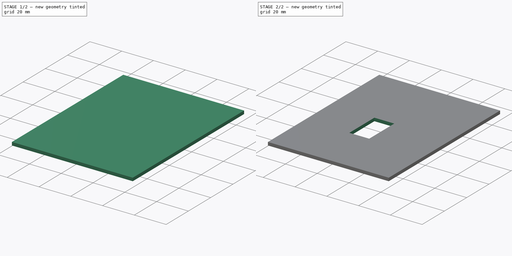
[diagram: build sequence overview — one tinted view per stage of 2, left to right]
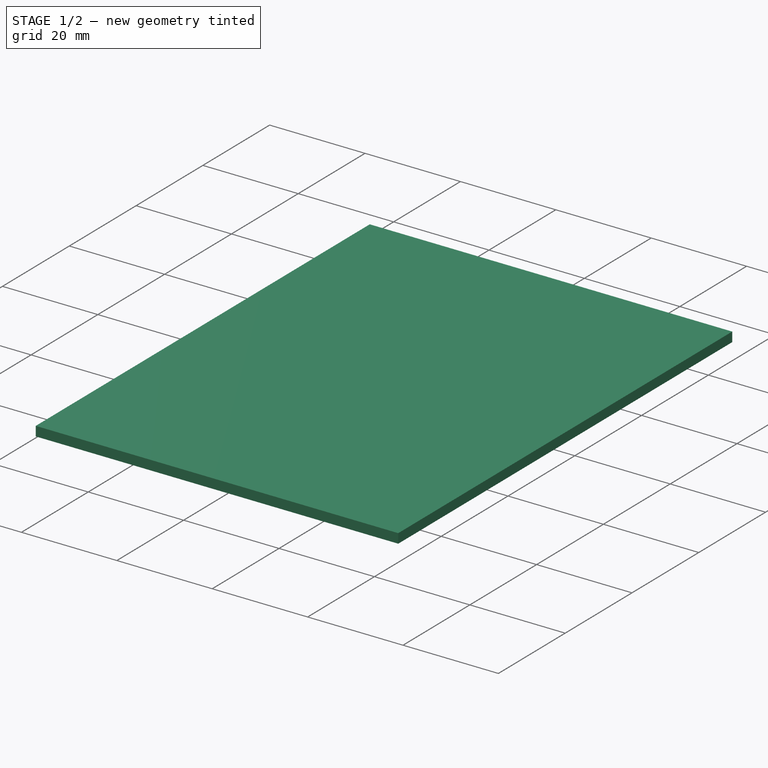
[diagram: stage 1 of 2 — iso view after this stage's code; geometry added in this stage tinted green]
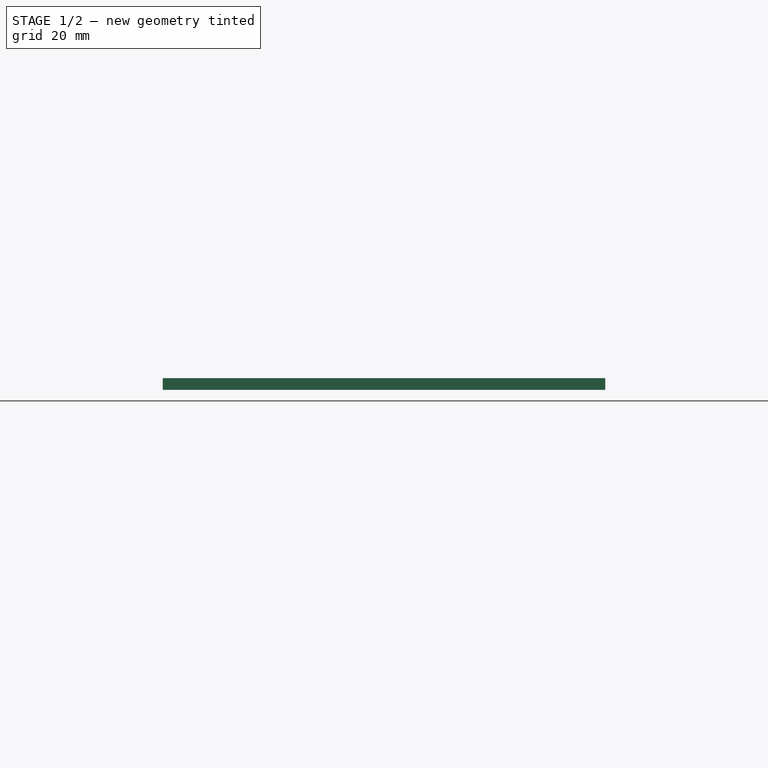
[diagram: stage 1 of 2 — front view after this stage's code; geometry added in this stage tinted green]
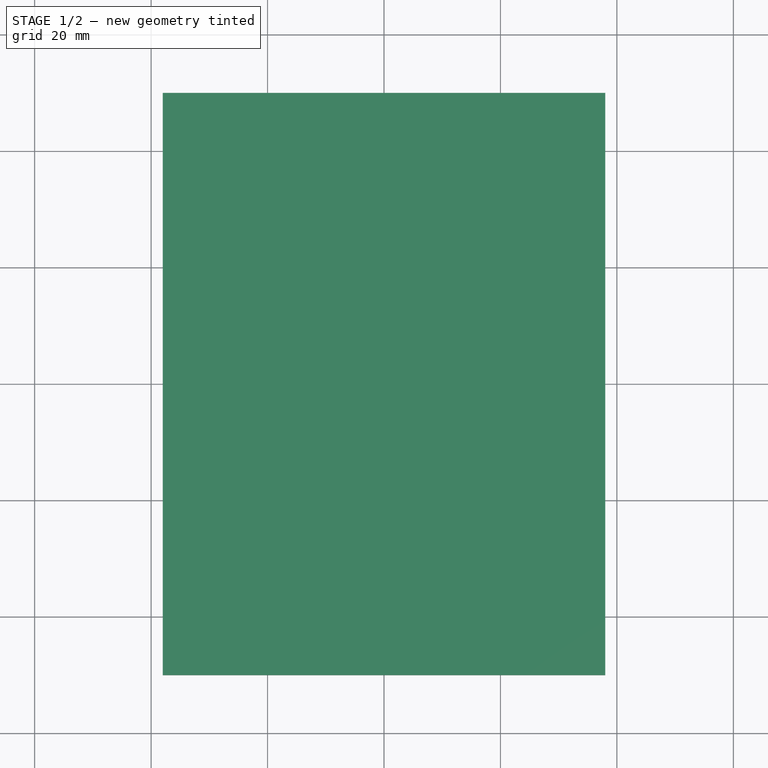
[diagram: stage 1 of 2 — top view after this stage's code; geometry added in this stage tinted green]
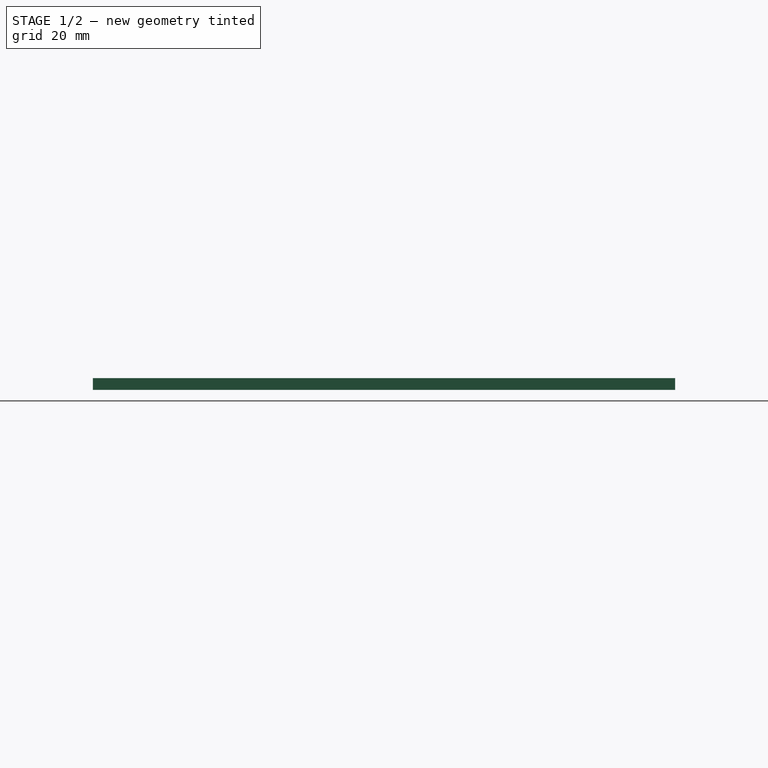
[diagram: stage 1 of 2 — right view after this stage's code; geometry added in this stage tinted green]
FCSTD DOCUMENT  (FreeCAD 0.19R)
Label: soporteservo
License: All rights reserved
LicenseURL: http://en.wikipedia.org/wiki/All_rights_reserved
objects: Sketcher::SketchObject×2, PartDesign::Pad×1, PartDesign::Pocket×1, PartDesign::Body×1
note: 7 computed .brp shape members not serialized (recipe doc carries the construction recipe); baked Part::Feature solids carry a one-line shape summary decoded from their .brp

FEATURE [Sketcher::SketchObject] Sketch
  FullyConstrained = true
  MapMode = 5
  Support = -> [XY_Plane]
  sketch-geometry (6):
    g0: LineSegment StartX=-38 StartY=-50 StartZ=0 EndX=38 EndY=-50 EndZ=0
    g1: LineSegment StartX=38 StartY=-50 StartZ=0 EndX=38 EndY=50 EndZ=0
    g2: LineSegment StartX=38 StartY=50 StartZ=0 EndX=-38 EndY=50 EndZ=0
    g3: LineSegment StartX=-38 StartY=50 StartZ=0 EndX=-38 EndY=-50 EndZ=0
    g4: LineSegment StartX=0 StartY=0 StartZ=0 EndX=38 EndY=50 EndZ=0
    g5: LineSegment StartX=-38 StartY=-50 StartZ=0 EndX=0 EndY=0 EndZ=0
  constraints (16):
    c: Coincident(g0,g1)
    c: Coincident(g1,g2)
    c: Coincident(g2,g3)
    c: Coincident(g3,g0)
    c: Horizontal(g0)
    c: Horizontal(g2)
    c: Vertical(g1)
    c: Vertical(g3)
    c: Coincident(g4,g-1)
    c: Coincident(g4,g1)
    c: Coincident(g5,g0)
    c: Coincident(g5,g-1)
    c: Parallel(g5,g4)
    c: DistanceY(g3,g3) = 100
    c: DistanceX(g0,g0) = 76
    c: Equal(g5,g4)
FEATURE [PartDesign::Pad] Pad
  Direction = (1,1,1)
  Length = 2
  Length2 = 100
  Profile = -> Sketch
  Refine = true
  Type = 0
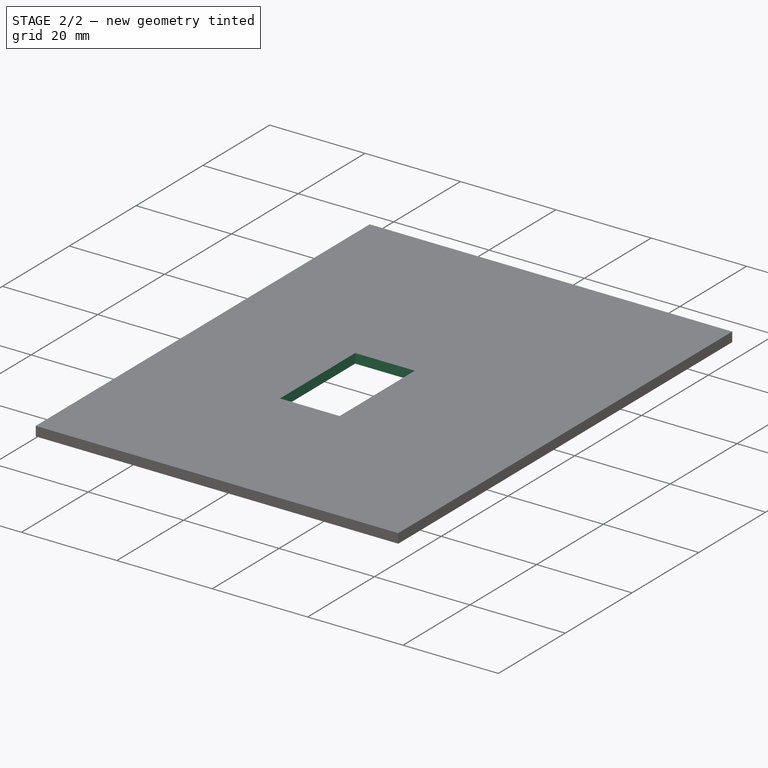
[diagram: stage 2 of 2 — iso view after this stage's code; geometry added in this stage tinted green]
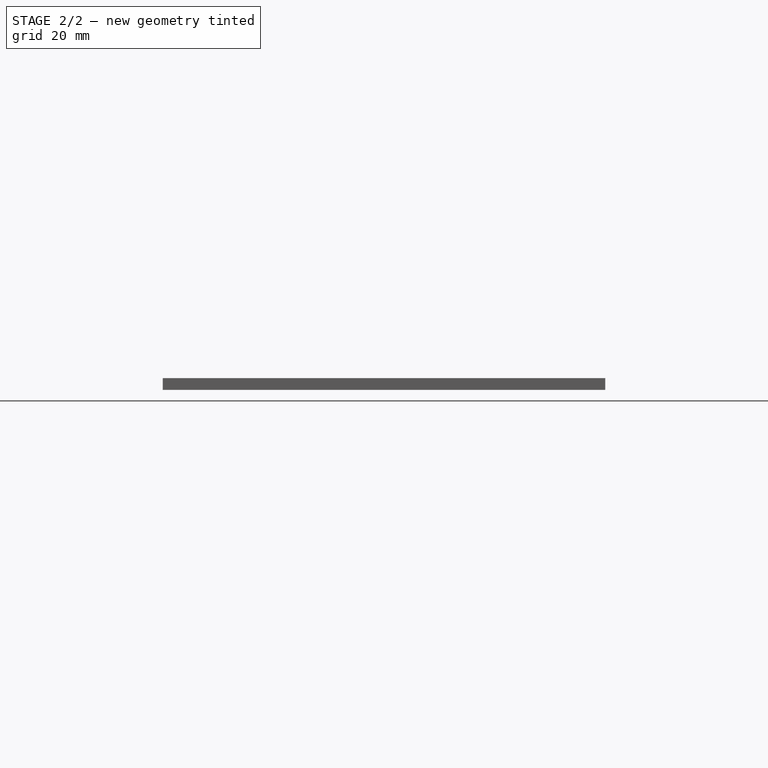
[diagram: stage 2 of 2 — front view after this stage's code; geometry added in this stage tinted green]
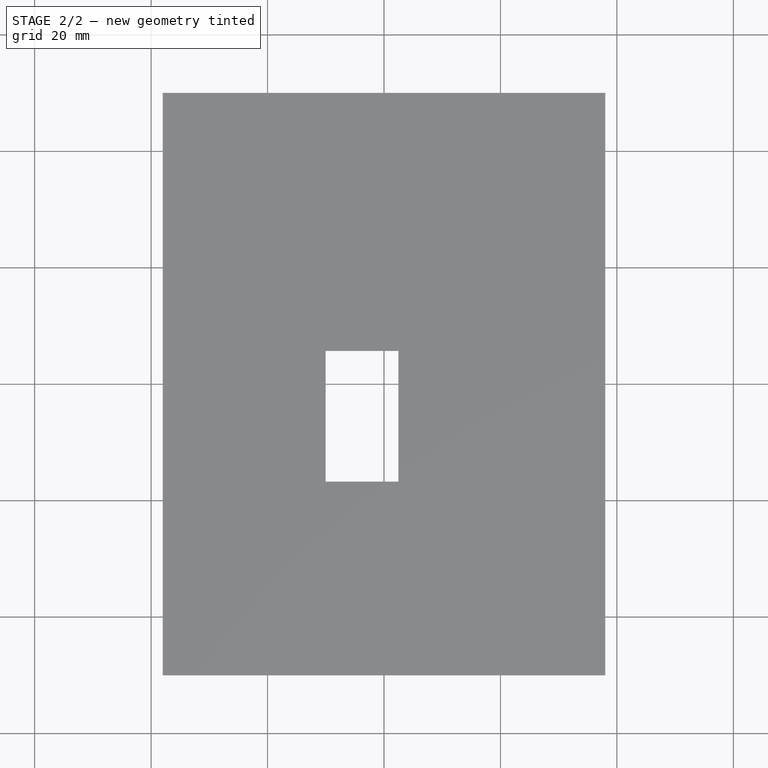
[diagram: stage 2 of 2 — top view after this stage's code; geometry added in this stage tinted green]
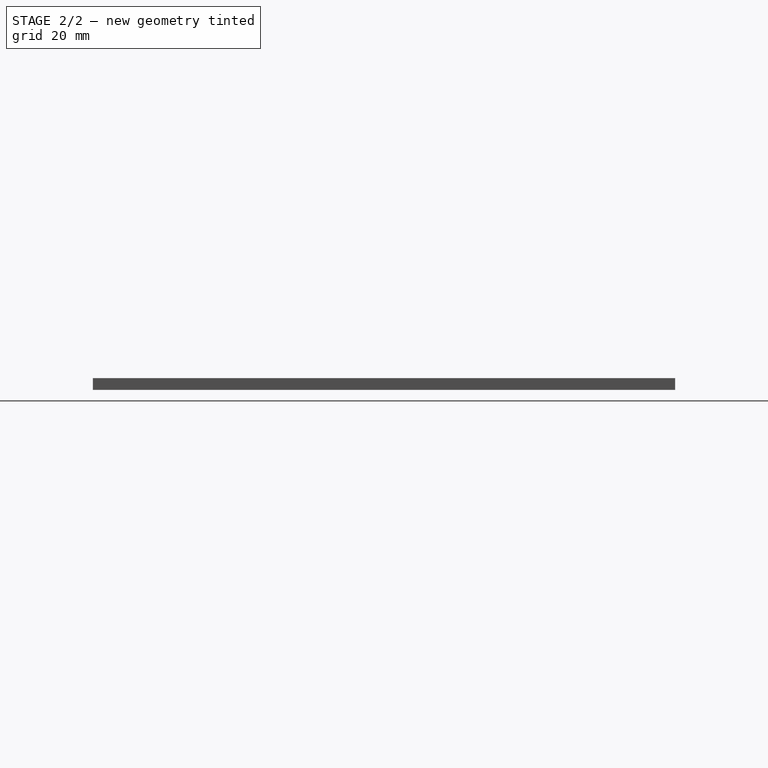
[diagram: stage 2 of 2 — right view after this stage's code; geometry added in this stage tinted green]
FEATURE [Sketcher::SketchObject] Sketch001
  ExternalGeometry = -> [Pad]
  FullyConstrained = false
  MapMode = 5
  Placement = pos=(0,0,2) rot=(0,0,1;0rad)
  Support = -> [Pad]
  sketch-geometry (4):
    g0: LineSegment StartX=-10.036 StartY=-16.7967 StartZ=0 EndX=2.46397 EndY=-16.7967 EndZ=0
    g1: LineSegment StartX=2.46397 StartY=-16.7967 StartZ=0 EndX=2.46397 EndY=5.70327 EndZ=0
    g2: LineSegment StartX=2.46397 StartY=5.70327 StartZ=0 EndX=-10.036 EndY=5.70327 EndZ=0
    g3: LineSegment StartX=-10.036 StartY=5.70327 StartZ=0 EndX=-10.036 EndY=-16.7967 EndZ=0
  constraints (12):
    c: DistanceY(g-4,g-4) = 100
    c: DistanceX(g-5,g-5) = 76
    c: Coincident(g0,g1)
    c: Coincident(g1,g2)
    c: Coincident(g2,g3)
    c: Coincident(g3,g0)
    c: Horizontal(g0)
    c: Horizontal(g2)
    c: Vertical(g1)
    c: Vertical(g3)
    c: DistanceX(g2,g2) = 12.5
    c: DistanceY(g1,g1) = 22.5
FEATURE [PartDesign::Pocket] Pocket
  BaseFeature = -> Pad
  Length = 5
  Length2 = 100
  Profile = -> Sketch001
  Refine = true
  Type = 0
FEATURE [PartDesign::Body] Body
  Group = -> [Sketch,Pad,Sketch001,Pocket]
  Origin = -> Origin
  Tip = -> Pocket
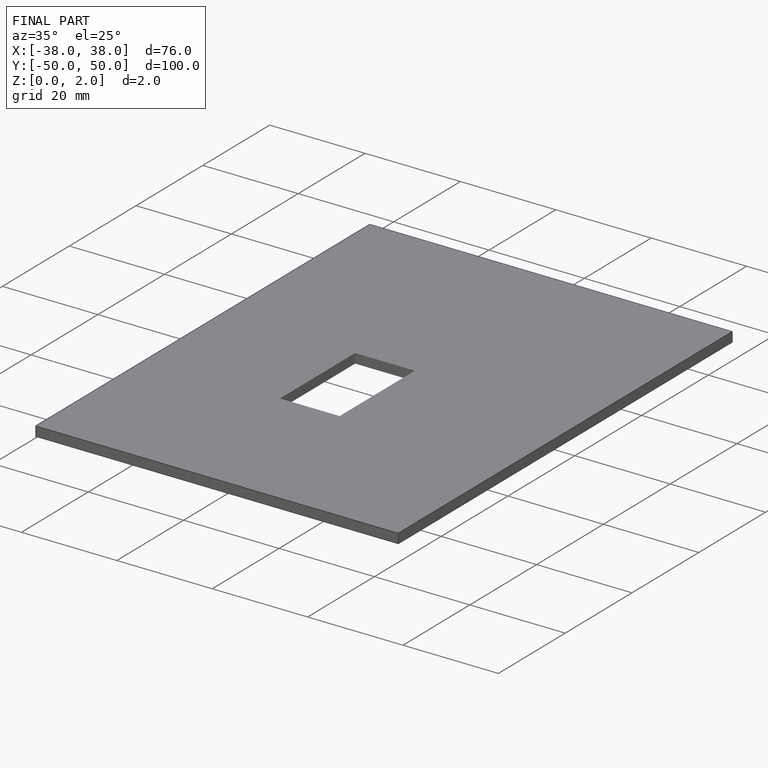
[diagram: finished part — iso view with bounding-box wireframe]
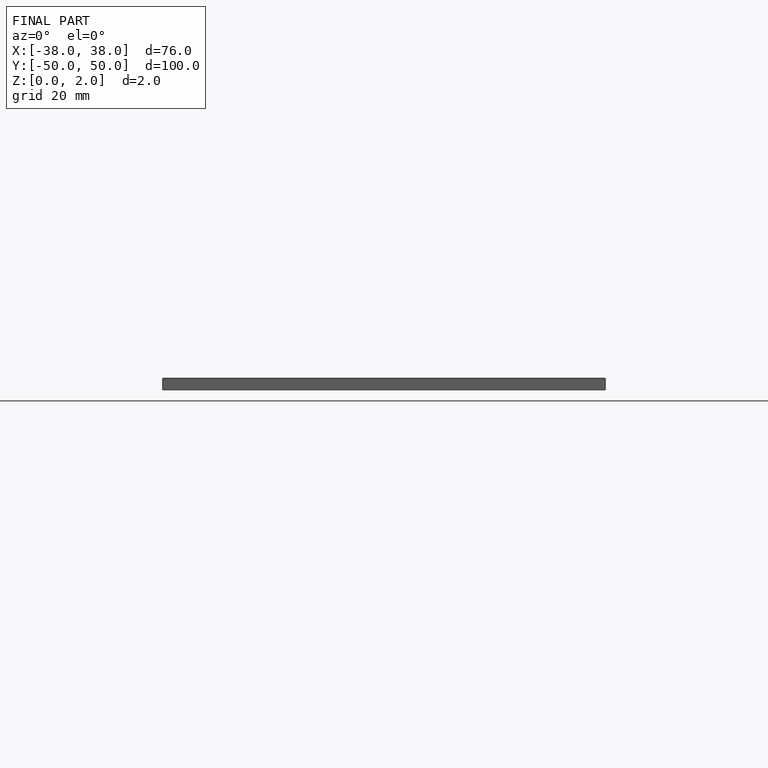
[diagram: finished part — front view with bounding-box wireframe]
